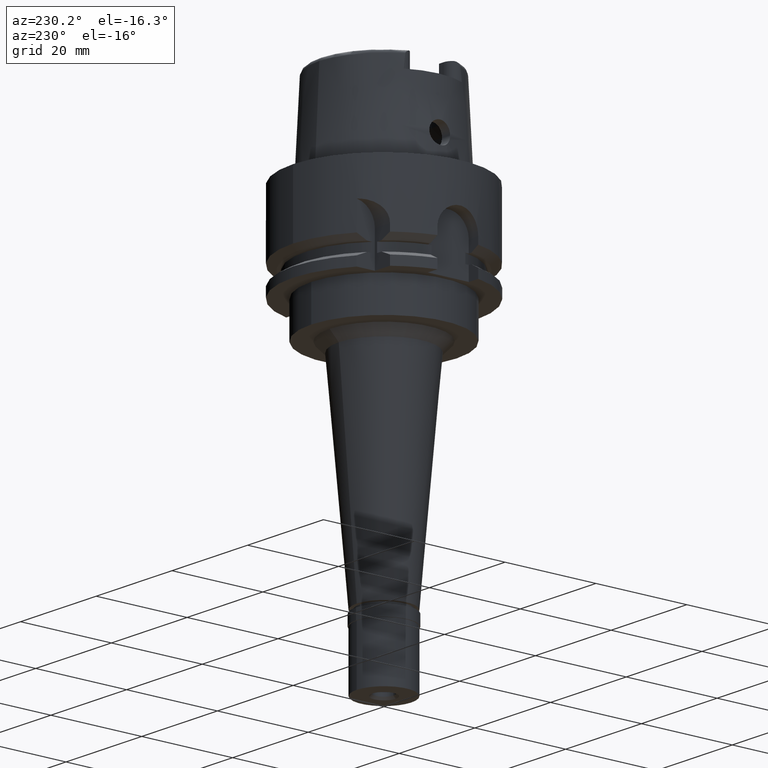
[diagram: clean part render]
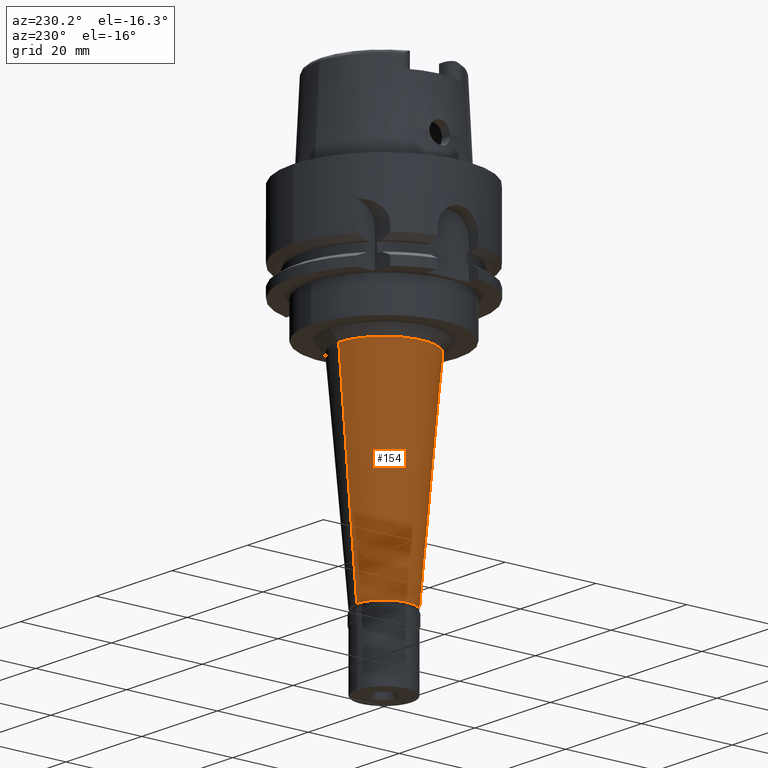
[diagram: same view with one face highlighted and labeled with its STEP entity id]
A machine part, auxiliary view. The second image highlights one B-rep face of the part: STEP entity #154.
In plain terms, the highlighted conical surface has half-angle 5 deg.
Its self-contained STEP definition (entity closure, byte-faithful):
#132 = EDGE_CURVE ( 'NONE', #1929, #4653, #2481, .T. ) ;
#154 = ADVANCED_FACE ( 'NONE', ( #4566 ), #1877, .T. ) ;
#191 = CARTESIAN_POINT ( 'NONE',  ( 0.0000000000000000000, 9.963236457722999262, -29.50000000000000000 ) ) ;
#426 = EDGE_LOOP ( 'NONE', ( #5284, #3962, #2634, #3144 ) ) ;
#529 = DIRECTION ( 'NONE',  ( 0.0000000000000000000, 0.0000000000000000000, 1.000000000000000000 ) ) ;
#536 = LINE ( 'NONE', #562, #3082 ) ;
#562 = CARTESIAN_POINT ( 'NONE',  ( 0.0000000000000000000, -9.963236457722999262, -29.50000000000000000 ) ) ;
#605 = AXIS2_PLACEMENT_3D ( 'NONE', #1408, #529, #2151 ) ;
#773 = AXIS2_PLACEMENT_3D ( 'NONE', #3861, #2202, #1359 ) ;
#780 = CIRCLE ( 'NONE', #773, 9.963236457721999173 ) ;
#1359 = DIRECTION ( 'NONE',  ( 0.0000000000000000000, -1.000000000000000000, 0.0000000000000000000 ) ) ;
#1382 = DIRECTION ( 'NONE',  ( 0.0000000000000000000, 0.0000000000000000000, 1.000000000000000000 ) ) ;
#1408 = CARTESIAN_POINT ( 'NONE',  ( 0.0000000000000000000, 0.0000000000000000000, -52.14999999999999858 ) ) ;
#1618 = DIRECTION ( 'NONE',  ( 0.0000000000000000000, -0.08715574274763414342, -0.9961946980917475436 ) ) ;
#1830 = CARTESIAN_POINT ( 'NONE',  ( 0.0000000000000000000, 0.0000000000000000000, -74.80000000000001137 ) ) ;
#1877 = CONICAL_SURFACE ( 'NONE', #605, 7.981618228861999675, 0.08726646259969973729 ) ;
#1929 = VERTEX_POINT ( 'NONE', #5119 ) ;
#2151 = DIRECTION ( 'NONE',  ( 0.0000000000000000000, 1.000000000000000000, 0.0000000000000000000 ) ) ;
#2202 = DIRECTION ( 'NONE',  ( 0.0000000000000000000, 0.0000000000000000000, -1.000000000000000000 ) ) ;
#2481 = CIRCLE ( 'NONE', #5065, 6.000000000000000000 ) ;
#2634 = ORIENTED_EDGE ( 'NONE', *, *, #3584, .T. ) ;
#2829 = VERTEX_POINT ( 'NONE', #191 ) ;
#3082 = VECTOR ( 'NONE', #4658, 1000.000000000000114 ) ;
#3144 = ORIENTED_EDGE ( 'NONE', *, *, #5061, .T. ) ;
#3260 = VECTOR ( 'NONE', #1618, 1000.000000000000114 ) ;
#3456 = DIRECTION ( 'NONE',  ( 0.0000000000000000000, 1.000000000000000000, 0.0000000000000000000 ) ) ;
#3584 = EDGE_CURVE ( 'NONE', #3873, #2829, #780, .T. ) ;
#3669 = LINE ( 'NONE', #4451, #3260 ) ;
#3861 = CARTESIAN_POINT ( 'NONE',  ( 0.0000000000000000000, 0.0000000000000000000, -29.50000000000000000 ) ) ;
#3873 = VERTEX_POINT ( 'NONE', #5139 ) ;
#3962 = ORIENTED_EDGE ( 'NONE', *, *, #4918, .F. ) ;
#4451 = CARTESIAN_POINT ( 'NONE',  ( 0.0000000000000000000, 9.963236457722999262, -29.50000000000000000 ) ) ;
#4566 = FACE_OUTER_BOUND ( 'NONE', #426, .T. ) ;
#4653 = VERTEX_POINT ( 'NONE', #5300 ) ;
#4658 = DIRECTION ( 'NONE',  ( 0.0000000000000000000, 0.08715574274763414342, -0.9961946980917475436 ) ) ;
#4918 = EDGE_CURVE ( 'NONE', #3873, #4653, #536, .T. ) ;
#5061 = EDGE_CURVE ( 'NONE', #2829, #1929, #3669, .T. ) ;
#5065 = AXIS2_PLACEMENT_3D ( 'NONE', #1830, #1382, #3456 ) ;
#5119 = CARTESIAN_POINT ( 'NONE',  ( 0.0000000000000000000, 6.000000000000000000, -74.80000000000001137 ) ) ;
#5139 = CARTESIAN_POINT ( 'NONE',  ( 0.0000000000000000000, -9.963236457722999262, -29.50000000000000000 ) ) ;
#5284 = ORIENTED_EDGE ( 'NONE', *, *, #132, .T. ) ;
#5300 = CARTESIAN_POINT ( 'NONE',  ( 0.0000000000000000000, -6.000000000000000000, -74.80000000000001137 ) ) ;